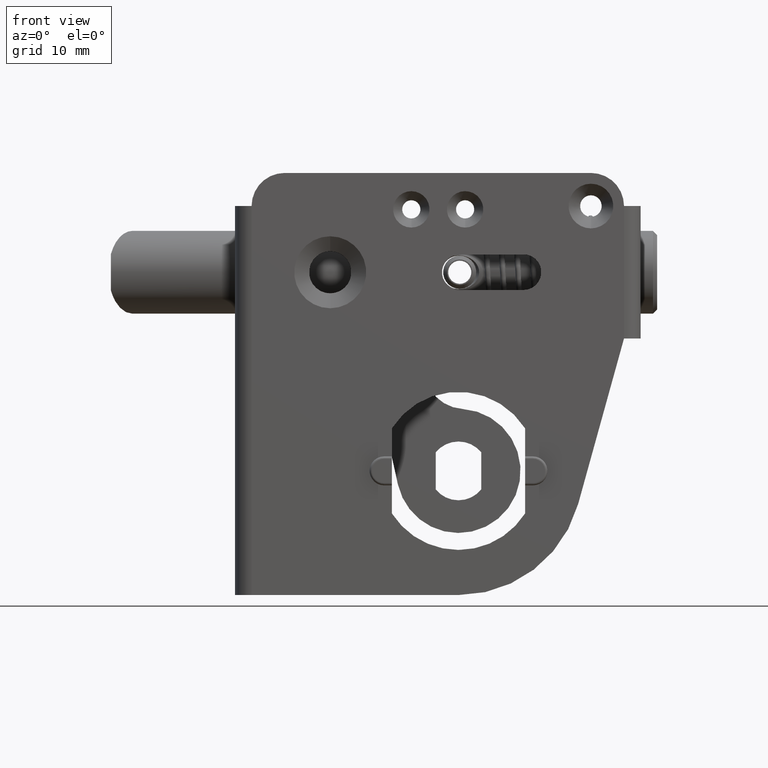
[diagram: clean part render]
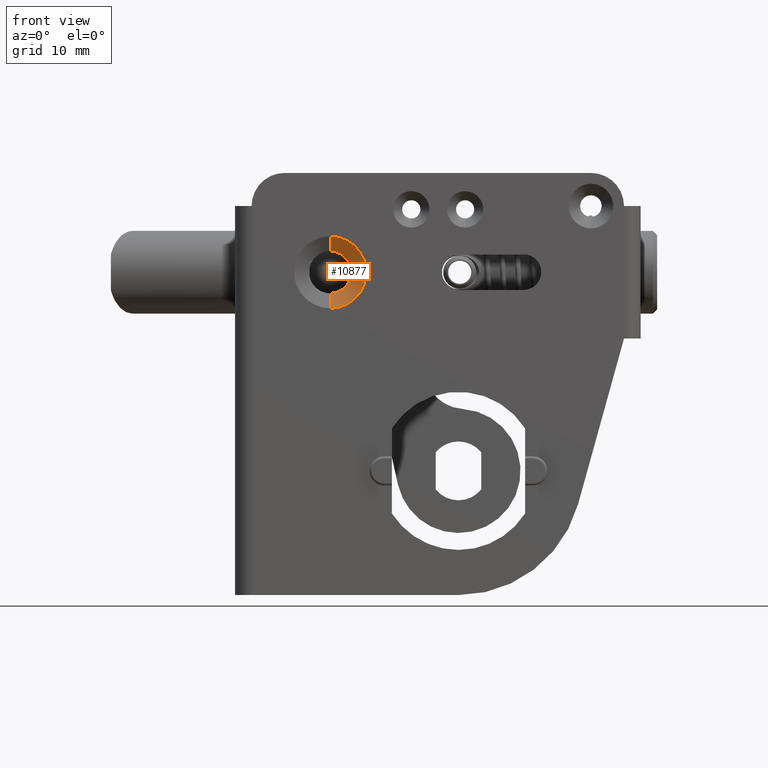
[diagram: same view with one face highlighted and labeled with its STEP entity id]
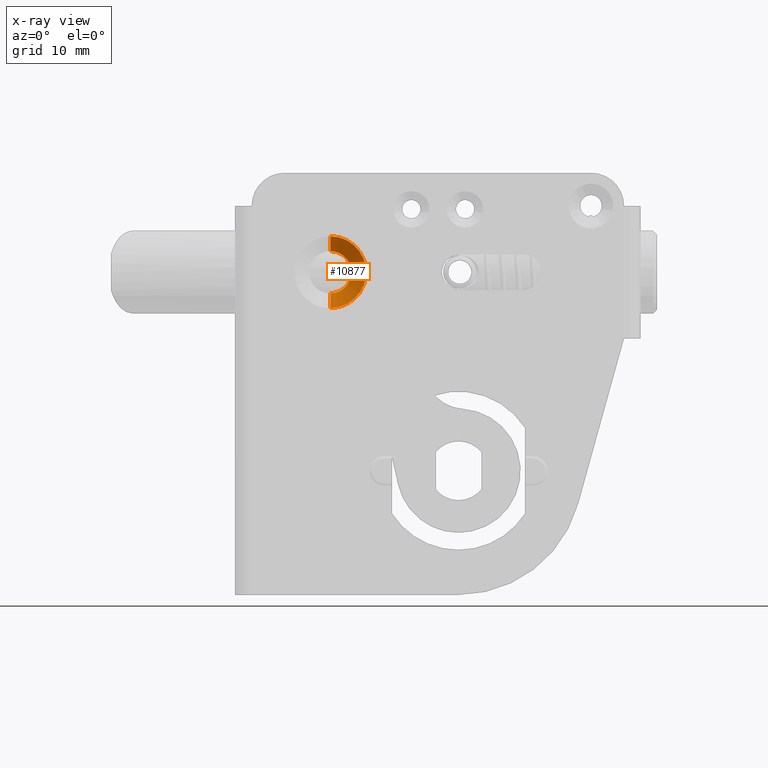
[diagram: x-ray of the same camera — body ghosted, the highlighted face saturated]
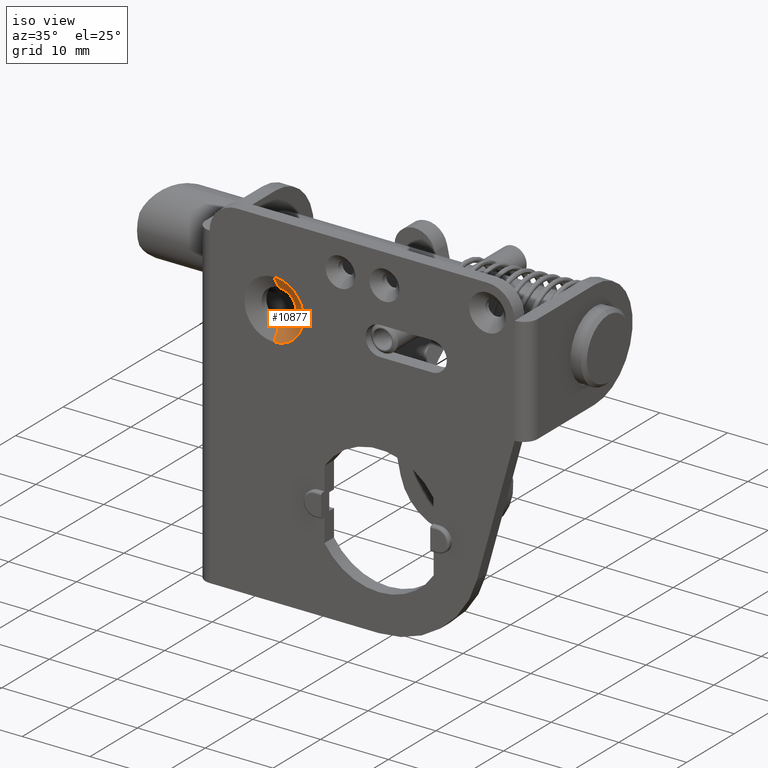
[diagram: same view with one face highlighted and labeled with its STEP entity id]
A machine part, front view. The second image highlights one B-rep face of the part: STEP entity #10877.
The next image is the same camera in x-ray: the body ghosted, the highlighted face saturated — about 0% of this face is hidden behind the body in this view.
A second angle (iso view) of the same face is appended — the face is thin or edge-on in the first view.
In plain terms, the highlighted conical surface has half-angle 60 deg.
Its self-contained STEP definition (entity closure, byte-faithful):
#68 = AXIS2_PLACEMENT_3D ( 'NONE', #11434, #9927, #1566 ) ;
#96 = VERTEX_POINT ( 'NONE', #7516 ) ;
#655 = EDGE_CURVE ( 'NONE', #14198, #3176, #11105, .T. ) ;
#917 = DIRECTION ( 'NONE',  ( 0.0000000000000000000, -0.5000000000000003300, -0.8660254037844383700 ) ) ;
#1566 = DIRECTION ( 'NONE',  ( 0.0000000000000000000, 0.0000000000000000000, -1.000000000000000000 ) ) ;
#1938 = CARTESIAN_POINT ( 'NONE',  ( -35.14999999989559900, -14.00000000001370100, -2.400000000429270800 ) ) ;
#2058 = VECTOR ( 'NONE', #7231, 1000.000000000000100 ) ;
#2398 = VECTOR ( 'NONE', #917, 1000.000000000000100 ) ;
#2453 = DIRECTION ( 'NONE',  ( 0.0000000000000000000, -1.000000000000000000, 0.0000000000000000000 ) ) ;
#3169 = CONICAL_SURFACE ( 'NONE', #14823, 4.349999999999999600, 1.047197551196597400 ) ;
#3176 = VERTEX_POINT ( 'NONE', #4146 ) ;
#3493 = ORIENTED_EDGE ( 'NONE', *, *, #7805, .F. ) ;
#3557 = FACE_OUTER_BOUND ( 'NONE', #14429, .T. ) ;
#3666 = DIRECTION ( 'NONE',  ( 0.0000000000000000000, 0.0000000000000000000, -1.000000000000000000 ) ) ;
#4146 = CARTESIAN_POINT ( 'NONE',  ( -35.14999999989559900, -12.96076951547237900, -4.200000000429270100 ) ) ;
#4895 = CARTESIAN_POINT ( 'NONE',  ( -35.14999999989559900, -14.00000000001370100, -6.750000000429270000 ) ) ;
#5398 = DIRECTION ( 'NONE',  ( 0.0000000000000000000, -1.000000000000000000, 0.0000000000000000000 ) ) ;
#5466 = CIRCLE ( 'NONE', #5934, 4.349999999999999600 ) ;
#5659 = LINE ( 'NONE', #8452, #2058 ) ;
#5934 = AXIS2_PLACEMENT_3D ( 'NONE', #12701, #5398, #13925 ) ;
#7231 = DIRECTION ( 'NONE',  ( 1.060575238724906700E-016, -0.5000000000000003300, 0.8660254037844383700 ) ) ;
#7516 = CARTESIAN_POINT ( 'NONE',  ( -35.14999999989559900, -14.00000000001370100, -11.10000000042927000 ) ) ;
#7805 = EDGE_CURVE ( 'NONE', #3176, #12271, #5659, .T. ) ;
#8418 = EDGE_CURVE ( 'NONE', #96, #12271, #5466, .T. ) ;
#8452 = CARTESIAN_POINT ( 'NONE',  ( -35.14999999989559900, -14.00000000001370100, -2.400000000429270800 ) ) ;
#8546 = ORIENTED_EDGE ( 'NONE', *, *, #655, .F. ) ;
#9927 = DIRECTION ( 'NONE',  ( 0.0000000000000000000, -1.000000000000000000, 0.0000000000000000000 ) ) ;
#10388 = ORIENTED_EDGE ( 'NONE', *, *, #10459, .T. ) ;
#10459 = EDGE_CURVE ( 'NONE', #14198, #96, #15341, .T. ) ;
#10877 = ADVANCED_FACE ( 'NONE', ( #3557 ), #3169, .F. ) ;
#11105 = CIRCLE ( 'NONE', #68, 2.550000000000000300 ) ;
#11434 = CARTESIAN_POINT ( 'NONE',  ( -35.14999999989559900, -12.96076951547237900, -6.750000000429270000 ) ) ;
#11704 = CARTESIAN_POINT ( 'NONE',  ( -35.14999999989559900, -12.96076951547237900, -9.300000000429269800 ) ) ;
#12271 = VERTEX_POINT ( 'NONE', #1938 ) ;
#12701 = CARTESIAN_POINT ( 'NONE',  ( -35.14999999989559900, -14.00000000001370100, -6.750000000429270000 ) ) ;
#13613 = ORIENTED_EDGE ( 'NONE', *, *, #8418, .T. ) ;
#13925 = DIRECTION ( 'NONE',  ( 0.0000000000000000000, 0.0000000000000000000, -1.000000000000000000 ) ) ;
#14198 = VERTEX_POINT ( 'NONE', #11704 ) ;
#14429 = EDGE_LOOP ( 'NONE', ( #3493, #8546, #10388, #13613 ) ) ;
#14823 = AXIS2_PLACEMENT_3D ( 'NONE', #4895, #2453, #3666 ) ;
#15341 = LINE ( 'NONE', #15499, #2398 ) ;
#15499 = CARTESIAN_POINT ( 'NONE',  ( -35.14999999989559900, -14.00000000001370100, -11.10000000042927000 ) ) ;